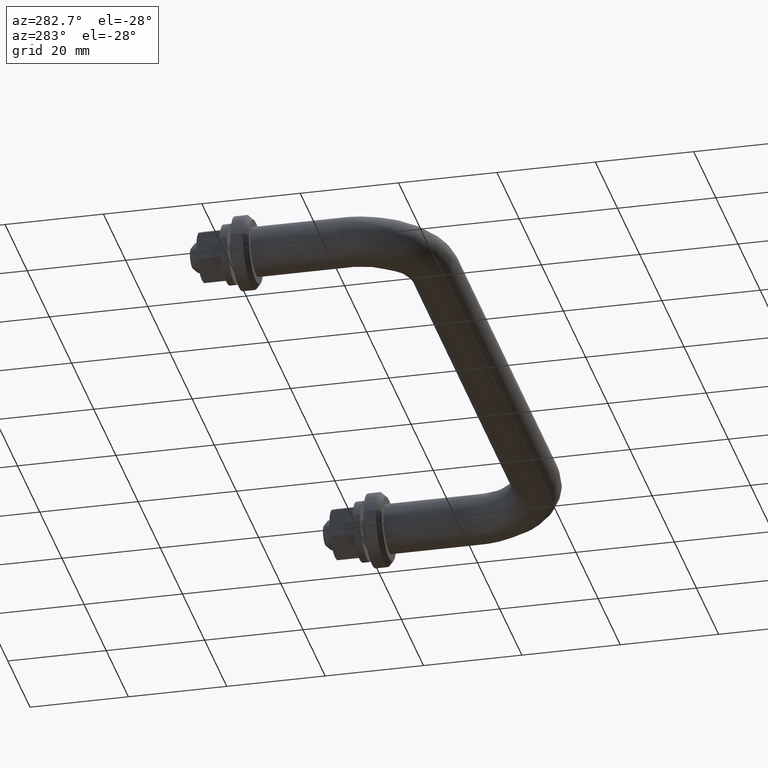
[diagram: clean part render]
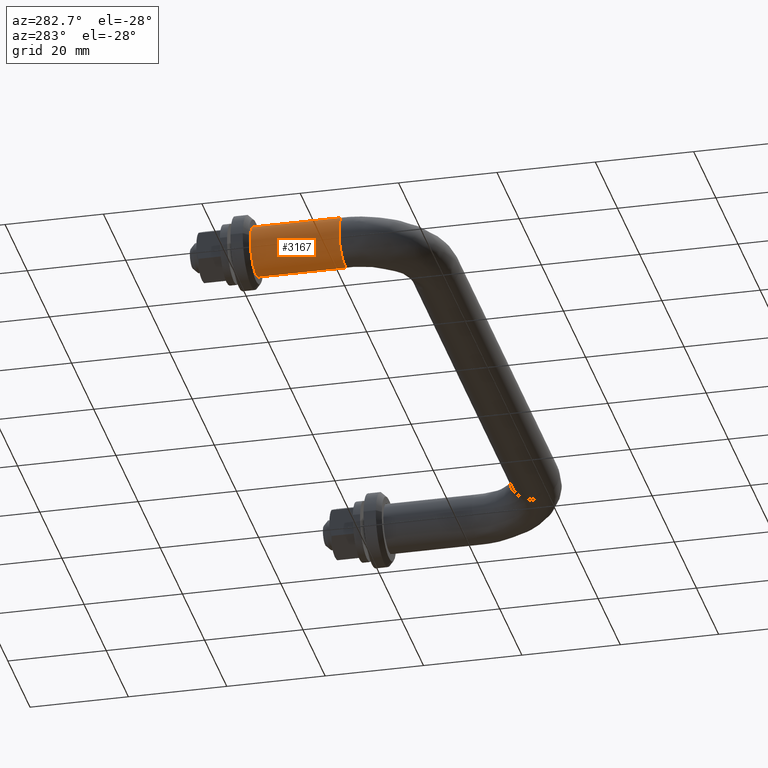
[diagram: same view with one face highlighted and labeled with its STEP entity id]
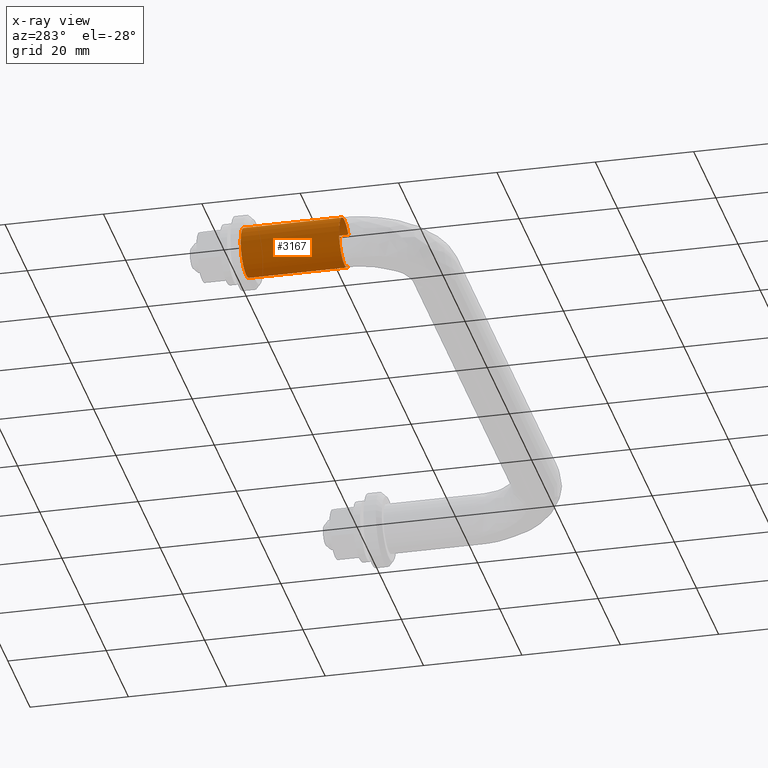
[diagram: x-ray of the same camera — body ghosted, the highlighted face saturated]
A machine part, auxiliary view. The second image highlights one B-rep face of the part: STEP entity #3167.
The next image is the same camera in x-ray: the body ghosted, the highlighted face saturated — about 0% of this face is hidden behind the body in this view.
In plain terms, the highlighted face is a freeform B-spline surface patch.
Its self-contained STEP definition (entity closure, byte-faithful):
#3031=CARTESIAN_POINT('',(3.504546321499253,0.500000000023292,3.566252245770907));
#3032=CARTESIAN_POINT('',(-0.061705924271653,0.500000000023292,7.070798567270160));
#3033=CARTESIAN_POINT('',(-3.566252245770907,0.500000000023291,3.504546321499253));
#3034=CARTESIAN_POINT('',(-7.070798567270160,0.500000000023291,-0.061705924271653));
#3035=CARTESIAN_POINT('',(-3.504546321499253,0.500000000023291,-3.566252245770907));
#3036=CARTESIAN_POINT('',(0.061705924271653,0.500000000023292,-7.070798567270160));
#3037=CARTESIAN_POINT('',(3.566252245770907,0.500000000023292,-3.504546321499253));
#3038=CARTESIAN_POINT('',(3.504546321499256,-20.512500000955502,3.566252245770907));
#3039=CARTESIAN_POINT('',(-0.061705924271651,-20.512500000955491,7.070798567270160));
#3040=CARTESIAN_POINT('',(-3.566252245770904,-20.512500000955502,3.504546321499253));
#3041=CARTESIAN_POINT('',(-7.070798567270158,-20.512500000955491,-0.061705924271653));
#3042=CARTESIAN_POINT('',(-3.504546321499251,-20.512500000955502,-3.566252245770907));
#3043=CARTESIAN_POINT('',(0.061705924271656,-20.512500000955491,-7.070798567270160));
#3044=CARTESIAN_POINT('',(3.566252245770909,-20.512500000955502,-3.504546321499253));
#3052=(BOUNDED_SURFACE()B_SPLINE_SURFACE(2,1,((#3031,#3038),(#3032,#3039),(#3033,#3040),(#3034,#3041),(#3035,#3042),(#3036,#3043),(#3037,#3044)),.UNSPECIFIED.,.F.,.F.,.U.)B_SPLINE_SURFACE_WITH_KNOTS((3,2,2,3),(2,2),(0.0,8.284271247461899,16.568542494923800,24.852813742385688),(0.0,21.012500000978790),.UNSPECIFIED.)GEOMETRIC_REPRESENTATION_ITEM()RATIONAL_B_SPLINE_SURFACE(((1.0,1.0),(0.707106781186548,0.707106781186548),(1.0,1.0),(0.707106781186548,0.707106781186548),(1.0,1.0),(0.707106781186548,0.707106781186548),(1.0,1.0)))REPRESENTATION_ITEM('')SURFACE());
#3053=CARTESIAN_POINT('',(0.062830199724828,-19.999999999986880,4.999605221015209));
#3054=VERTEX_POINT('',#3053);
#3055=CARTESIAN_POINT('',(3.504545881485945,-19.999999999996021,3.566252678125415));
#3056=VERTEX_POINT('',#3055);
#3057=CARTESIAN_POINT('',(0.062830199724828,-19.999999999986873,4.999605221015209));
#3058=CARTESIAN_POINT('',(2.071644357743148,-19.999999999992216,4.974360388713899));
#3059=CARTESIAN_POINT('',(3.504545881485946,-19.999999999996025,3.566252678125415));
#3067=(BOUNDED_CURVE()B_SPLINE_CURVE(2,(#3057,#3058,#3059),.UNSPECIFIED.,.F.,.U.)B_SPLINE_CURVE_WITH_KNOTS((3,3),(0.752215704099945,0.873683205178172),.UNSPECIFIED.)CURVE()GEOMETRIC_REPRESENTATION_ITEM()RATIONAL_B_SPLINE_CURVE((0.994854295594130,0.855068765981151,0.853569642170475))REPRESENTATION_ITEM(''));
#3068=EDGE_CURVE('',#3054,#3056,#3067,.T.);
#3069=ORIENTED_EDGE('',*,*,#3068,.T.);
#3070=CARTESIAN_POINT('',(3.504545999161051,5.551115E-017,3.566252562531720));
#3071=VERTEX_POINT('',#3070);
#3072=CARTESIAN_POINT('',(3.504545999161051,5.551115E-017,3.566252562531720));
#3073=CARTESIAN_POINT('',(3.504545881485945,-19.999999999996021,3.566252678125415));
#3074=QUASI_UNIFORM_CURVE('',1,(#3072,#3073),.UNSPECIFIED.,.F.,.U.);
#3075=EDGE_CURVE('',#3071,#3056,#3074,.T.);
#3076=ORIENTED_EDGE('',*,*,#3075,.F.);
#3077=CARTESIAN_POINT('',(-5.0,0.0,0.0));
#3078=VERTEX_POINT('',#3077);
#3079=CARTESIAN_POINT('',(-5.0,0.0,0.0));
#3080=CARTESIAN_POINT('',(-5.000000000000001,0.0,5.000000000000001));
#3081=CARTESIAN_POINT('',(0.0,0.0,5.0));
#3082=CARTESIAN_POINT('',(2.045553479570108,0.0,5.000000000000001));
#3083=CARTESIAN_POINT('',(3.504545999161051,5.551115E-017,3.566252562531720));
#3091=(BOUNDED_CURVE()B_SPLINE_CURVE(2,(#3079,#3080,#3081,#3082,#3083),.UNSPECIFIED.,.F.,.U.)B_SPLINE_CURVE_WITH_KNOTS((3,2,3),(0.500000000000000,0.750000000000000,0.873683215132095),.UNSPECIFIED.)CURVE()GEOMETRIC_REPRESENTATION_ITEM()RATIONAL_B_SPLINE_CURVE((1.0,0.707106781186548,1.0,0.855096100027056,0.853569641924778))REPRESENTATION_ITEM(''));
#3092=EDGE_CURVE('',#3078,#3071,#3091,.T.);
#3093=ORIENTED_EDGE('',*,*,#3092,.F.);
#3094=CARTESIAN_POINT('',(3.566252367963553,5.551115E-017,-3.504546197155106));
#3095=VERTEX_POINT('',#3094);
#3096=CARTESIAN_POINT('',(3.566252367963553,5.551115E-017,-3.504546197155106));
#3097=CARTESIAN_POINT('',(2.096674213781681,0.0,-5.0));
#3098=CARTESIAN_POINT('',(0.0,0.0,-5.0));
#3099=CARTESIAN_POINT('',(-5.000000000000001,0.0,-5.000000000000001));
#3100=CARTESIAN_POINT('',(-5.0,0.0,0.0));
#3108=(BOUNDED_CURVE()B_SPLINE_CURVE(2,(#3096,#3097,#3098,#3099,#3100),.UNSPECIFIED.,.F.,.U.)B_SPLINE_CURVE_WITH_KNOTS((3,2,3),(0.123683231886692,0.250000000000000,0.500000000000000),.UNSPECIFIED.)CURVE()GEOMETRIC_REPRESENTATION_ITEM()RATIONAL_B_SPLINE_CURVE((0.853569641511221,0.852010700788723,1.0,0.707106781186548,1.0))REPRESENTATION_ITEM(''));
#3109=EDGE_CURVE('',#3095,#3078,#3108,.T.);
#3110=ORIENTED_EDGE('',*,*,#3109,.F.);
#3111=CARTESIAN_POINT('',(3.566252369489986,-19.999999999999989,-3.504546195601798));
#3112=VERTEX_POINT('',#3111);
#3113=CARTESIAN_POINT('',(3.566252367963553,5.551115E-017,-3.504546197155106));
#3114=CARTESIAN_POINT('',(3.566252369489986,-19.999999999999989,-3.504546195601798));
#3115=QUASI_UNIFORM_CURVE('',1,(#3113,#3114),.UNSPECIFIED.,.F.,.U.);
#3116=EDGE_CURVE('',#3095,#3112,#3115,.T.);
#3117=ORIENTED_EDGE('',*,*,#3116,.T.);
#3118=CARTESIAN_POINT('',(-0.348666262618661,-20.000000000931621,-4.987828368870718));
#3119=VERTEX_POINT('',#3118);
#3120=CARTESIAN_POINT('',(3.566252369489986,-20.0,-3.504546195601798));
#3121=CARTESIAN_POINT('',(2.096674216342415,-20.000000000000004,-5.000000000000001));
#3122=CARTESIAN_POINT('',(2.449213E-015,-20.0,-5.0));
#3123=CARTESIAN_POINT('',(-0.174545584132372,-20.000000000000004,-5.0));
#3124=CARTESIAN_POINT('',(-0.348666262618661,-20.000000000931617,-4.987828368870718));
#3132=(BOUNDED_CURVE()B_SPLINE_CURVE(2,(#3120,#3121,#3122,#3123,#3124),.UNSPECIFIED.,.F.,.U.)B_SPLINE_CURVE_WITH_KNOTS((3,2,3),(0.123683231755248,0.250000000000000,0.262166313791840),.UNSPECIFIED.)CURVE()GEOMETRIC_REPRESENTATION_ITEM()RATIONAL_B_SPLINE_CURVE((0.853569641514465,0.852010700634727,1.0,0.985746276769654,0.972879875695487))REPRESENTATION_ITEM(''));
#3133=EDGE_CURVE('',#3112,#3119,#3132,.T.);
#3134=ORIENTED_EDGE('',*,*,#3133,.T.);
#3135=CARTESIAN_POINT('',(-4.999999999999997,-20.0,0.0));
#3136=VERTEX_POINT('',#3135);
#3137=CARTESIAN_POINT('',(-0.348666262618661,-20.000000000931625,-4.987828368870718));
#3138=CARTESIAN_POINT('',(-4.999999999999997,-20.0,-4.662684227446723));
#3139=CARTESIAN_POINT('',(-4.999999999999997,-20.0,0.0));
#3147=(BOUNDED_CURVE()B_SPLINE_CURVE(2,(#3137,#3138,#3139),.UNSPECIFIED.,.F.,.U.)B_SPLINE_CURVE_WITH_KNOTS((3,3),(0.262166313791840,0.500000000000000),.UNSPECIFIED.)CURVE()GEOMETRIC_REPRESENTATION_ITEM()RATIONAL_B_SPLINE_CURVE((0.972879875695487,0.721360504416894,1.0))REPRESENTATION_ITEM(''));
#3148=EDGE_CURVE('',#3119,#3136,#3147,.T.);
#3149=ORIENTED_EDGE('',*,*,#3148,.T.);
#3150=CARTESIAN_POINT('',(-4.999999999999997,-20.0,0.0));
#3151=CARTESIAN_POINT('',(-4.999999999999997,-19.999999999999996,5.000000000000001));
#3152=CARTESIAN_POINT('',(2.449213E-015,-20.0,5.0));
#3153=CARTESIAN_POINT('',(0.031416340267555,-19.999999999999996,5.0));
#3154=CARTESIAN_POINT('',(0.062830199724828,-19.999999999986876,4.999605221015209));
#3162=(BOUNDED_CURVE()B_SPLINE_CURVE(2,(#3150,#3151,#3152,#3153,#3154),.UNSPECIFIED.,.F.,.U.)B_SPLINE_CURVE_WITH_KNOTS((3,2,3),(0.500000000000000,0.750000000000000,0.752215704099945),.UNSPECIFIED.)CURVE()GEOMETRIC_REPRESENTATION_ITEM()RATIONAL_B_SPLINE_CURVE((1.0,0.707106781186548,1.0,0.997404141176916,0.994854295594129))REPRESENTATION_ITEM(''));
#3163=EDGE_CURVE('',#3136,#3054,#3162,.T.);
#3164=ORIENTED_EDGE('',*,*,#3163,.T.);
#3165=EDGE_LOOP('',(#3069,#3076,#3093,#3110,#3117,#3134,#3149,#3164));
#3166=FACE_OUTER_BOUND('',#3165,.T.);
#3167=ADVANCED_FACE('',(#3166),#3052,.T.);